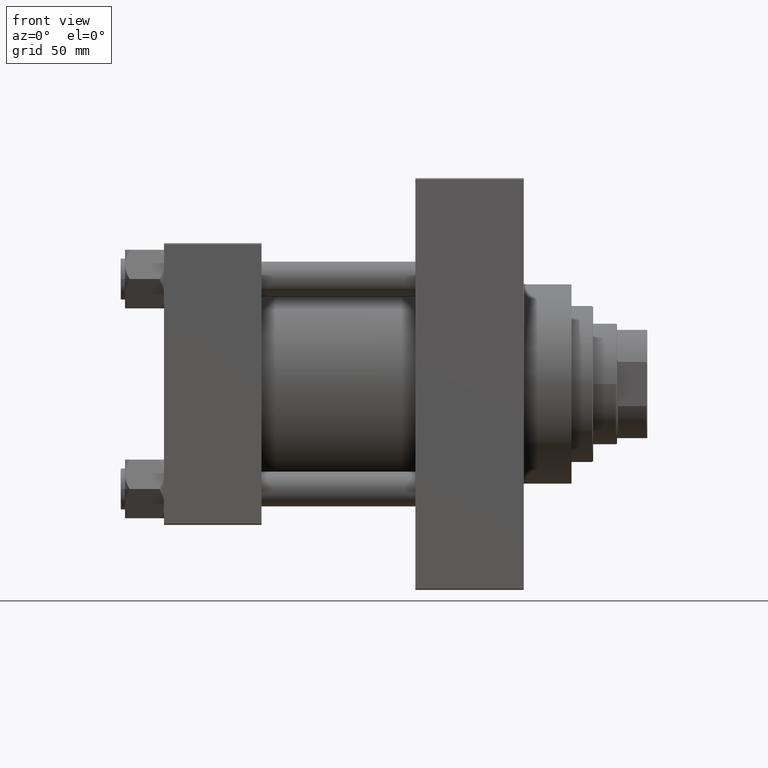
[diagram: clean part render]
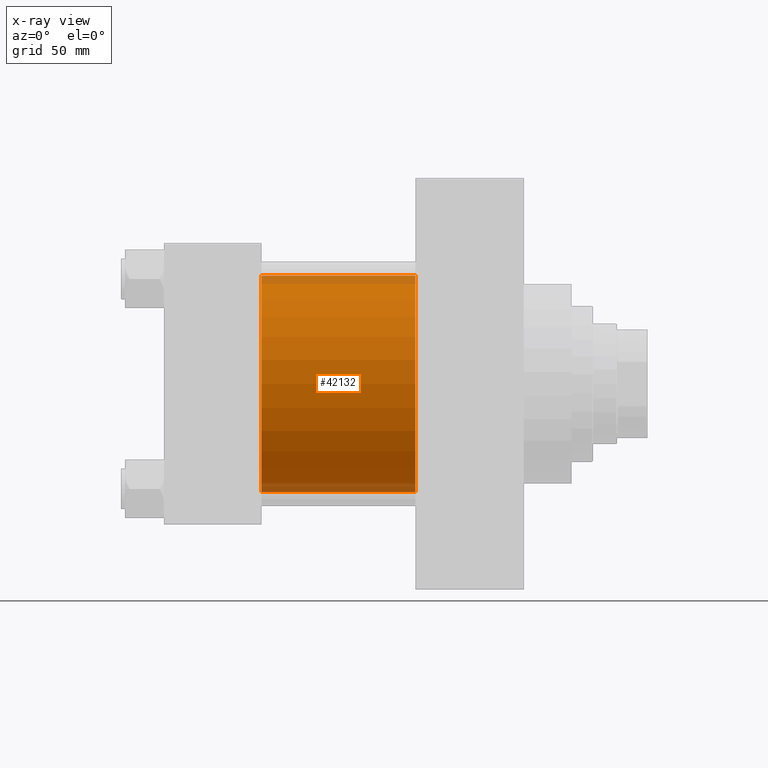
[diagram: x-ray — body ghosted, one internal face saturated and labeled with its STEP entity id]
A machine part, front view, then the same camera in x-ray: the body is ghosted and one INTERNAL B-rep face — a face not visible from any outside direction — is saturated and labeled: STEP entity #42132.
In plain terms, the highlighted cylindrical surface (partial cylindrical patch) has radius 50 mm, axis along (-1, -0, -0).
Its self-contained STEP definition (entity closure, byte-faithful):
#350 = DIRECTION ( 'NONE',  ( 1.000000000000000000, 0.000000000000000000, 0.000000000000000000 ) ) ;
#699 = EDGE_CURVE ( 'NONE', #38752, #34327, #7225, .T. ) ;
#1519 = DIRECTION ( 'NONE',  ( 0.000000000000000000, 0.000000000000000000, -1.000000000000000000 ) ) ;
#2651 = VERTEX_POINT ( 'NONE', #38409 ) ;
#4610 = CARTESIAN_POINT ( 'NONE',  ( 115.9999999999999858, -2.602085213965210642E-15, 0.000000000000000000 ) ) ;
#7147 = FACE_OUTER_BOUND ( 'NONE', #47215, .T. ) ;
#7225 = LINE ( 'NONE', #26156, #49803 ) ;
#7944 = VECTOR ( 'NONE', #21770, 1000.000000000000000 ) ;
#10388 = CARTESIAN_POINT ( 'NONE',  ( 115.9999999999999858, -2.602085213965210642E-15, 50.00000000000000000 ) ) ;
#12170 = CARTESIAN_POINT ( 'NONE',  ( 45.00000000000000000, -2.602085213965210642E-15, 0.000000000000000000 ) ) ;
#13404 = AXIS2_PLACEMENT_3D ( 'NONE', #12170, #350, #1519 ) ;
#14738 = ORIENTED_EDGE ( 'NONE', *, *, #18251, .T. ) ;
#14802 = ORIENTED_EDGE ( 'NONE', *, *, #21379, .T. ) ;
#15981 = DIRECTION ( 'NONE',  ( 1.000000000000000000, 0.000000000000000000, 0.000000000000000000 ) ) ;
#18251 = EDGE_CURVE ( 'NONE', #38752, #2651, #37787, .T. ) ;
#19490 = DIRECTION ( 'NONE',  ( -1.000000000000000000, -0.000000000000000000, -0.000000000000000000 ) ) ;
#19752 = CARTESIAN_POINT ( 'NONE',  ( 115.9999999999999858, -2.602085213965210642E-15, 0.000000000000000000 ) ) ;
#19913 = VERTEX_POINT ( 'NONE', #47463 ) ;
#21379 = EDGE_CURVE ( 'NONE', #2651, #19913, #44257, .T. ) ;
#21770 = DIRECTION ( 'NONE',  ( -1.000000000000000000, -0.000000000000000000, -0.000000000000000000 ) ) ;
#22267 = ORIENTED_EDGE ( 'NONE', *, *, #42196, .F. ) ;
#22539 = CYLINDRICAL_SURFACE ( 'NONE', #25478, 50.00000000000000000 ) ;
#25478 = AXIS2_PLACEMENT_3D ( 'NONE', #4610, #19490, #32535 ) ;
#26156 = CARTESIAN_POINT ( 'NONE',  ( 115.9999999999999858, -2.602085213965210642E-15, 50.00000000000000000 ) ) ;
#31381 = DIRECTION ( 'NONE',  ( 0.000000000000000000, 0.000000000000000000, -1.000000000000000000 ) ) ;
#31534 = ORIENTED_EDGE ( 'NONE', *, *, #699, .F. ) ;
#32535 = DIRECTION ( 'NONE',  ( 0.000000000000000000, 0.000000000000000000, 1.000000000000000000 ) ) ;
#34327 = VERTEX_POINT ( 'NONE', #48357 ) ;
#35971 = CIRCLE ( 'NONE', #13404, 50.00000000000000000 ) ;
#37787 = CIRCLE ( 'NONE', #44234, 50.00000000000000000 ) ;
#38265 = DIRECTION ( 'NONE',  ( -1.000000000000000000, -0.000000000000000000, -0.000000000000000000 ) ) ;
#38409 = CARTESIAN_POINT ( 'NONE',  ( 115.9999999999999858, 3.521148781771555838E-15, -50.00000000000000000 ) ) ;
#38752 = VERTEX_POINT ( 'NONE', #10388 ) ;
#42132 = ADVANCED_FACE ( 'NONE', ( #7147 ), #22539, .F. ) ;
#42196 = EDGE_CURVE ( 'NONE', #34327, #19913, #35971, .T. ) ;
#44234 = AXIS2_PLACEMENT_3D ( 'NONE', #19752, #15981, #31381 ) ;
#44257 = LINE ( 'NONE', #44998, #7944 ) ;
#44998 = CARTESIAN_POINT ( 'NONE',  ( 115.9999999999999858, 3.521148781771555838E-15, -50.00000000000000000 ) ) ;
#47215 = EDGE_LOOP ( 'NONE', ( #14738, #14802, #22267, #31534 ) ) ;
#47463 = CARTESIAN_POINT ( 'NONE',  ( 45.00000000000000000, 3.521148781771555838E-15, -50.00000000000000000 ) ) ;
#48357 = CARTESIAN_POINT ( 'NONE',  ( 45.00000000000000000, -2.602085213965210642E-15, 50.00000000000000000 ) ) ;
#49803 = VECTOR ( 'NONE', #38265, 1000.000000000000000 ) ;